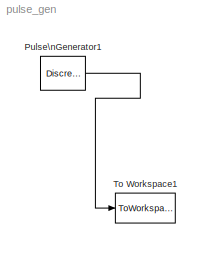
MODEL pulse_gen
KIND model
BLOCK [DiscretePulseGenerator] Pulse\nGenerator1
  Period = 100
  PhaseDelay = 10
  Ports = [0, 1]
  PulseType = Time based
  PulseWidth = 50
BLOCK [ToWorkspace] To Workspace1
  MaxDataPoints = inf
  SampleTime = Ts
  SaveFormat = Array
  VariableName = inPulse
LINE Pulse\nGenerator1:1 -> To Workspace1:1
